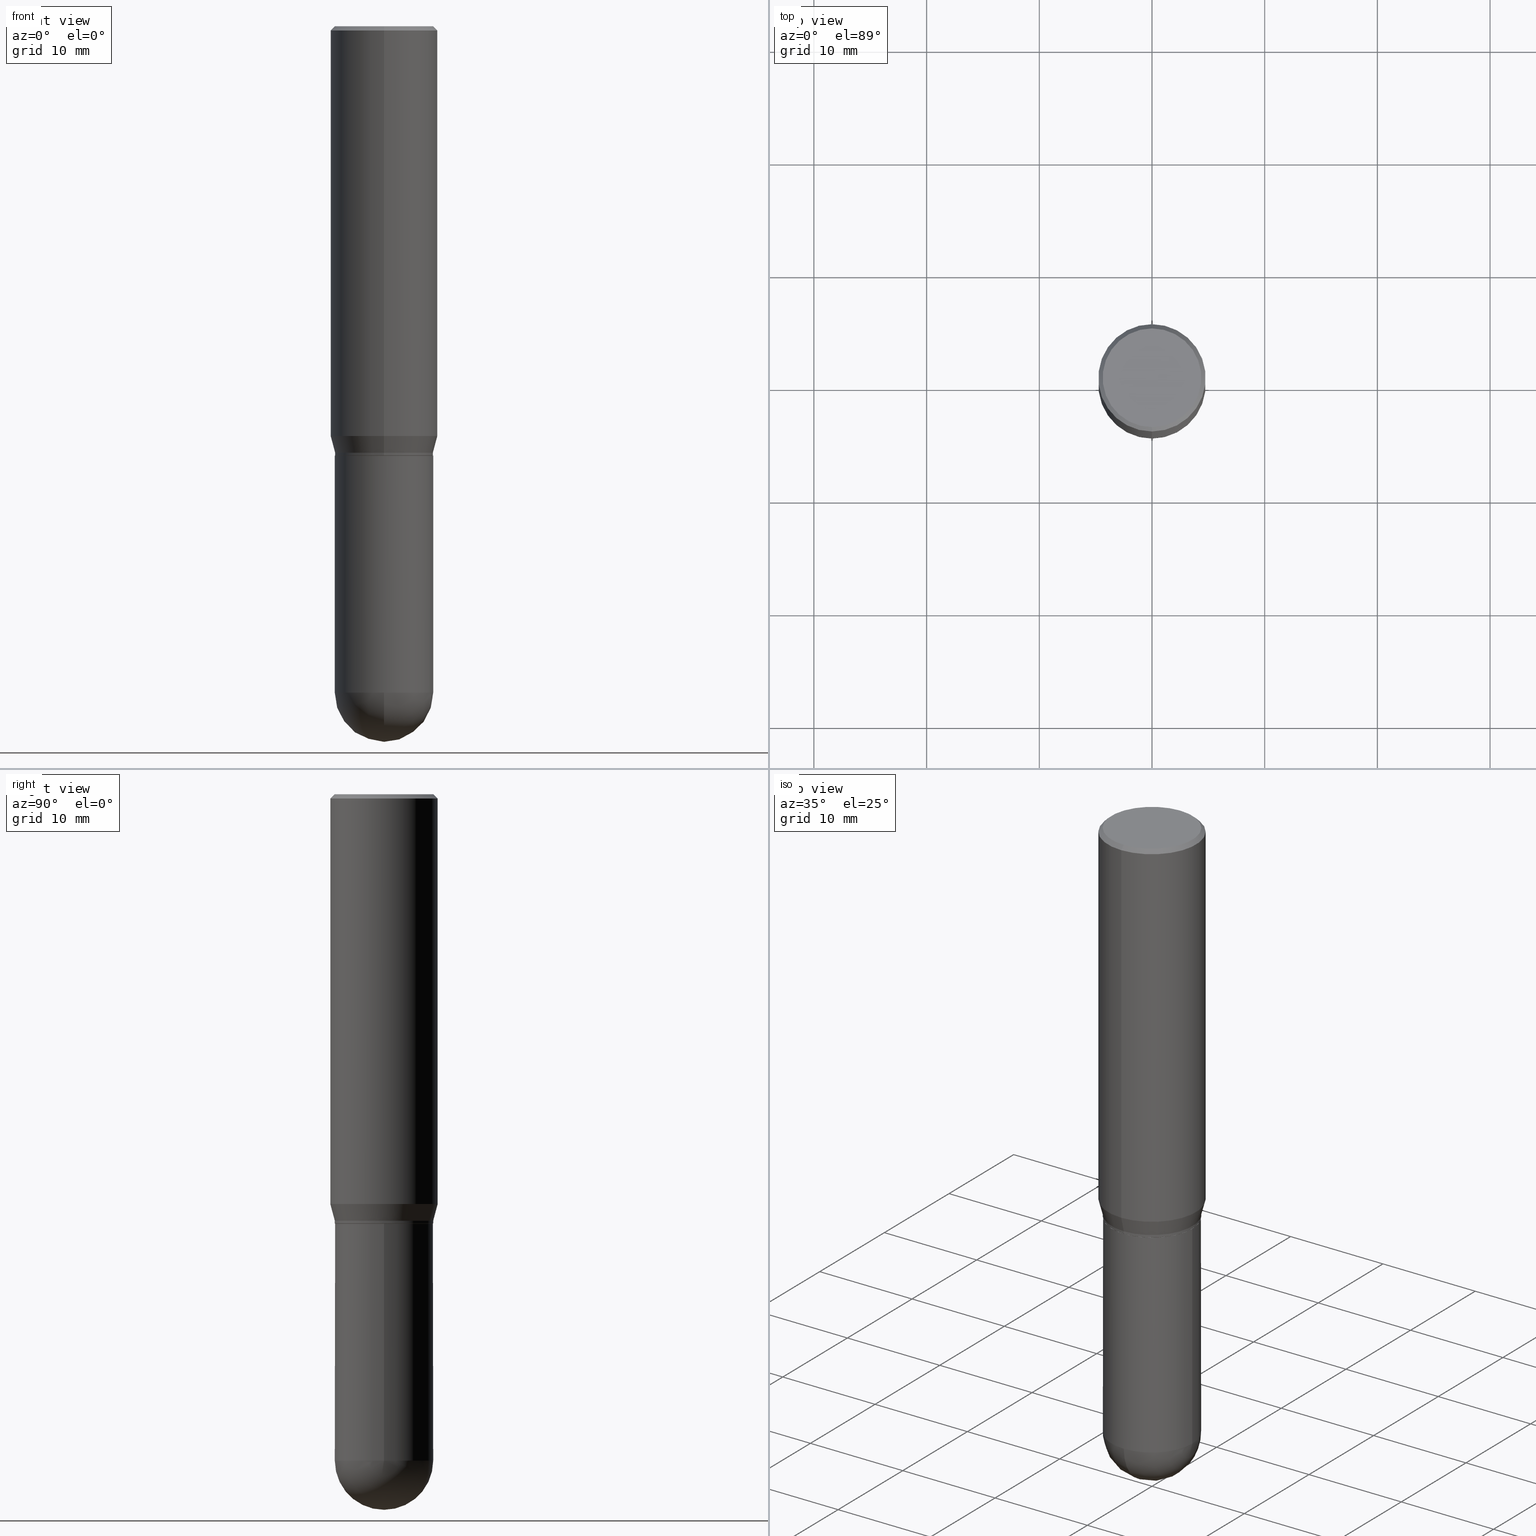
[diagram: canonical four-view strip — front | top / right | iso, engineering-drawing reading convention]
A machine part, canonical four-view strip (front | top / right | iso — engineering-drawing reading convention). The complete STEP part file that produces these views, byte-faithful:
ISO-10303-21;
HEADER;
FILE_DESCRIPTION (( 'STEP AP203' ),
    '1' );
FILE_NAME ('30544.STEP',
    '2024-03-08T15:32:07',
    ( '' ),
    ( '' ),
    'SwSTEP 2.0',
    'SolidWorks 2023',
    '' );
FILE_SCHEMA (( 'CONFIG_CONTROL_DESIGN' ));
ENDSEC;

DATA;
#1 = ORIENTED_EDGE ( 'NONE', *, *, #424, .F. ) ;
#2 = DIRECTION ( 'NONE',  ( -7.105427357601001070E-15, -1.000000000000000000, 0.000000000000000000 ) ) ;
#3 = EDGE_CURVE ( 'NONE', #134, #171, #494, .T. ) ;
#4 = ORIENTED_EDGE ( 'NONE', *, *, #305, .T. ) ;
#5 = DATE_TIME_ROLE ( 'classification_date' ) ;
#6 = ORIENTED_EDGE ( 'NONE', *, *, #28, .T. ) ;
#7 = AXIS2_PLACEMENT_3D ( 'NONE', #15, #25, #403 ) ;
#8 = EDGE_CURVE ( 'NONE', #251, #134, #235, .T. ) ;
#9 = ORIENTED_EDGE ( 'NONE', *, *, #28, .F. ) ;
#10 = CARTESIAN_POINT ( 'NONE',  ( 1.325500720156383299E-45, -1.892455723492389081E-31, -5.420220105122506872E-17 ) ) ;
#11 = VERTEX_POINT ( 'NONE', #105 ) ;
#12 = DIRECTION ( 'NONE',  ( -6.982962677686266711E-15, -1.000000000000000000, 3.187687273820611169E-15 ) ) ;
#13 = VERTEX_POINT ( 'NONE', #62 ) ;
#14 = CIRCLE ( 'NONE', #354, 0.1718999999999998862 ) ;
#15 = CARTESIAN_POINT ( 'NONE',  ( 3.668210961314156973E-29, -5.237210906907301972E-15, -1.500000000000000222 ) ) ;
#16 = CARTESIAN_POINT ( 'NONE',  ( 5.693295927679617284E-29, -8.128517704960729139E-15, -2.328100000000000058 ) ) ;
#17 = LINE ( 'NONE', #107, #503 ) ;
#18 = CARTESIAN_POINT ( 'NONE',  ( 3.668210961314156973E-29, -5.237210906907301972E-15, -1.500000000000000222 ) ) ;
#19 = EDGE_CURVE ( 'NONE', #229, #131, #429, .T. ) ;
#20 = DIRECTION ( 'NONE',  ( 2.445473974209437701E-29, -3.491473937938200789E-15, -1.000000000000000000 ) ) ;
#21 = ORIENTED_EDGE ( 'NONE', *, *, #8, .T. ) ;
#22 = FACE_OUTER_BOUND ( 'NONE', #120, .T. ) ;
#23 = DIRECTION ( 'NONE',  ( -2.445468806185136597E-29, 3.491481338843145583E-15, 1.000000000000000000 ) ) ;
#24 = EDGE_LOOP ( 'NONE', ( #56, #88, #46, #103 ) ) ;
#25 = DIRECTION ( 'NONE',  ( -2.445473974209437701E-29, 3.491473937938200789E-15, 1.000000000000000000 ) ) ;
#26 = AXIS2_PLACEMENT_3D ( 'NONE', #10, #374, #443 ) ;
#27 = ORIENTED_EDGE ( 'NONE', *, *, #428, .T. ) ;
#28 = EDGE_CURVE ( 'NONE', #188, #340, #122, .T. ) ;
#29 = FACE_OUTER_BOUND ( 'NONE', #358, .T. ) ;
#30 = PRODUCT_DEFINITION_SHAPE ( 'NONE', 'NONE',  #489 ) ;
#31 = COORDINATED_UNIVERSAL_TIME_OFFSET ( 5, 0, .BEHIND. ) ;
#32 = APPROVAL_DATE_TIME ( #194, #33 ) ;
#33 = APPROVAL ( #237, 'UNSPECIFIED' ) ;
#34 = EDGE_CURVE ( 'NONE', #131, #251, #143, .T. ) ;
#35 = AXIS2_PLACEMENT_3D ( 'NONE', #350, #423, #242 ) ;
#36 = AXIS2_PLACEMENT_3D ( 'NONE', #39, #200, #352 ) ;
#37 = PERSON_AND_ORGANIZATION ( #49, #225 ) ;
#38 = FACE_OUTER_BOUND ( 'NONE', #265, .T. ) ;
#39 = CARTESIAN_POINT ( 'NONE',  ( 3.501380744894803912E-29, -4.999022580704787319E-15, -1.431780007401925348 ) ) ;
#40 = CARTESIAN_POINT ( 'NONE',  ( 0.000000000000000000, 0.000000000000000000, 0.000000000000000000 ) ) ;
#41 = AXIS2_PLACEMENT_3D ( 'NONE', #329, #20, #216 ) ;
#42 = CC_DESIGN_APPROVAL ( #212, ( #316 ) ) ;
#43 = COORDINATED_UNIVERSAL_TIME_OFFSET ( 5, 0, .BEHIND. ) ;
#44 = ORIENTED_EDGE ( 'NONE', *, *, #305, .F. ) ;
#45 = FACE_OUTER_BOUND ( 'NONE', #217, .T. ) ;
#46 = ORIENTED_EDGE ( 'NONE', *, *, #506, .F. ) ;
#47 = CARTESIAN_POINT ( 'NONE',  ( 5.678595619168622984E-29, -8.149569383438070914E-15, -2.328100000000000058 ) ) ;
#48 = ORIENTED_EDGE ( 'NONE', *, *, #34, .F. ) ;
#49 = PERSON ( 'UNSPECIFIED', 'UNSPECIFIED', 'UNSPECIFIED', ('UNSPECIFIED'), ('UNSPECIFIED'), ('UNSPECIFIED') ) ;
#50 = CC_DESIGN_PERSON_AND_ORGANIZATION_ASSIGNMENT ( #37, #71, ( #489 ) ) ;
#51 = CIRCLE ( 'NONE', #115, 0.1718999999999999140 ) ;
#52 = ORIENTED_EDGE ( 'NONE', *, *, #155, .F. ) ;
#53 = DIRECTION ( 'NONE',  ( 1.000000000000000000, -6.982962677686268288E-15, 0.000000000000000000 ) ) ;
#54 = ORIENTED_EDGE ( 'NONE', *, *, #98, .F. ) ;
#55 = EDGE_CURVE ( 'NONE', #163, #171, #126, .T. ) ;
#56 = ORIENTED_EDGE ( 'NONE', *, *, #437, .T. ) ;
#57 = FACE_OUTER_BOUND ( 'NONE', #24, .T. ) ;
#58 = CYLINDRICAL_SURFACE ( 'NONE', #123, 0.1719000000000000250 ) ;
#59 = DIRECTION ( 'NONE',  ( -2.445473974209437701E-29, 3.491473937938200789E-15, 1.000000000000000000 ) ) ;
#60 = FACE_OUTER_BOUND ( 'NONE', #86, .T. ) ;
#61 = DIRECTION ( 'NONE',  ( -2.445473974209437701E-29, 3.491473937938200789E-15, 1.000000000000000000 ) ) ;
#62 = CARTESIAN_POINT ( 'NONE',  ( 1.200371284294326039E-15, 0.1718999999999918094, -2.328100000000000946 ) ) ;
#63 = DIRECTION ( 'NONE',  ( -4.851104656540965064E-15, -0.7071067811865501263, -0.7071067811865449082 ) ) ;
#64 = DIRECTION ( 'NONE',  ( -4.937700262164715281E-15, -0.7071067811865691111, 0.7071067811865257013 ) ) ;
#65 = DIRECTION ( 'NONE',  ( 1.839019923739597949E-15, 0.2588190451025246253, 0.9659258262890670910 ) ) ;
#66 = CARTESIAN_POINT ( 'NONE',  ( 0.000000000000000000, 0.000000000000000000, 0.000000000000000000 ) ) ;
#67 = CARTESIAN_POINT ( 'NONE',  ( 1.221422962771647501E-15, 0.1718999999999946959, -1.490000000000000879 ) ) ;
#68 = AXIS2_PLACEMENT_3D ( 'NONE', #490, #178, #332 ) ;
#69 = CALENDAR_DATE ( 2024, 8, 3 ) ;
#70 = EDGE_CURVE ( 'NONE', #171, #188, #451, .T. ) ;
#71 = PERSON_AND_ORGANIZATION_ROLE ( 'creator' ) ;
#72 =( NAMED_UNIT ( * ) SI_UNIT ( $, .STERADIAN. ) SOLID_ANGLE_UNIT ( ) );
#73 = ADVANCED_FACE ( 'NONE', ( #411 ), #150, .T. ) ;
#74 = CIRCLE ( 'NONE', #203, 0.1719000000000000250 ) ;
#75 = CIRCLE ( 'NONE', #36, 0.1875000000000000278 ) ;
#76 = PLANE ( 'NONE',  #504 ) ;
#77 = DATE_AND_TIME ( #415, #147 ) ;
#78 = CARTESIAN_POINT ( 'NONE',  ( 5.678595619168622984E-29, -8.149569383438070914E-15, -2.328100000000000058 ) ) ;
#79 = VECTOR ( 'NONE', #441, 39.37007874015748143 ) ;
#80 = EDGE_CURVE ( 'NONE', #11, #320, #17, .T. ) ;
#81 = VERTEX_POINT ( 'NONE', #491 ) ;
#82 = LINE ( 'NONE', #473, #179 ) ;
#83 = ADVANCED_FACE ( 'NONE', ( #414 ), #145, .T. ) ;
#84 = ORIENTED_EDGE ( 'NONE', *, *, #348, .T. ) ;
#85 = APPROVAL_STATUS ( 'not_yet_approved' ) ;
#86 = EDGE_LOOP ( 'NONE', ( #219, #359 ) ) ;
#87 = AXIS2_PLACEMENT_3D ( 'NONE', #119, #254, #508 ) ;
#88 = ORIENTED_EDGE ( 'NONE', *, *, #367, .T. ) ;
#89 = CARTESIAN_POINT ( 'NONE',  ( 0.000000000000000000, 0.000000000000000000, 0.000000000000000000 ) ) ;
#90 = ORIENTED_EDGE ( 'NONE', *, *, #70, .T. ) ;
#91 = CYLINDRICAL_SURFACE ( 'NONE', #87, 0.1719000000000000250 ) ;
#92 = DIRECTION ( 'NONE',  ( 1.000000000000000000, -6.982962677686271444E-15, 0.000000000000000000 ) ) ;
#93 = CARTESIAN_POINT ( 'NONE',  ( -1.200371284294268255E-15, -0.1718999999999998862, 6.001843699315763985E-16 ) ) ;
#94 = DIRECTION ( 'NONE',  ( 2.445473974209437701E-29, -3.491473937938200789E-15, -1.000000000000000000 ) ) ;
#95 = CARTESIAN_POINT ( 'NONE',  ( -1.309305502066140101E-15, -0.1875000000000049960, -1.431780007401924903 ) ) ;
#96 = AXIS2_PLACEMENT_3D ( 'NONE', #66, #59, #306 ) ;
#97 = CARTESIAN_POINT ( 'NONE',  ( -1.200371284294231968E-15, -0.1719000000000050765, -1.489999999999999769 ) ) ;
#98 = EDGE_CURVE ( 'NONE', #320, #210, #369, .T. ) ;
#99 = AXIS2_PLACEMENT_3D ( 'NONE', #140, #230, #462 ) ;
#100 = DIRECTION ( 'NONE',  ( 1.000000000000000000, -6.982962677686268288E-15, 0.000000000000000000 ) ) ;
#101 = LOCAL_TIME ( 10, 32, 7.000000000000000000, #510 ) ;
#102 = CARTESIAN_POINT ( 'NONE',  ( -0.1718999999999999695, -5.461446893841111458E-15, -1.500000000000000222 ) ) ;
#103 = ORIENTED_EDGE ( 'NONE', *, *, #3, .F. ) ;
#104 = DIRECTION ( 'NONE',  ( -6.982962677686265922E-15, -1.000000000000000000, 3.178415350394723646E-15 ) ) ;
#105 = CARTESIAN_POINT ( 'NONE',  ( 0.1719000000000000250, -7.883241140906993293E-15, -2.328100000000000058 ) ) ;
#106 = CARTESIAN_POINT ( 'NONE',  ( 3.666988224327052427E-29, -5.235465169938333100E-15, -1.499500000000000277 ) ) ;
#107 = CARTESIAN_POINT ( 'NONE',  ( 0.1719000000000000250, -1.200371284294269241E-15, 8.382147877593214480E-30 ) ) ;
#108 = CARTESIAN_POINT ( 'NONE',  ( 3.643756221572062694E-29, -5.202296167527919806E-15, -1.490000000000000213 ) ) ;
#109 = CIRCLE ( 'NONE', #360, 0.1713999999999999690 ) ;
#110 = APPROVAL_PERSON_ORGANIZATION ( #170, #212, #130 ) ;
#111 = EDGE_CURVE ( 'NONE', #81, #176, #281, .T. ) ;
#112 = CALENDAR_DATE ( 2024, 8, 3 ) ;
#113 = SECURITY_CLASSIFICATION_LEVEL ( 'unclassified' ) ;
#114 = CC_DESIGN_DATE_AND_TIME_ASSIGNMENT ( #507, #5, ( #316 ) ) ;
#115 = AXIS2_PLACEMENT_3D ( 'NONE', #106, #302, #366 ) ;
#116 = AXIS2_PLACEMENT_3D ( 'NONE', #108, #233, #457 ) ;
#117 = APPLICATION_PROTOCOL_DEFINITION ( 'international standard', 'config_control_design', 1994, #438 ) ;
#118 = EDGE_CURVE ( 'NONE', #131, #229, #109, .T. ) ;
#119 = CARTESIAN_POINT ( 'NONE',  ( 0.000000000000000000, 0.000000000000000000, 0.000000000000000000 ) ) ;
#120 = EDGE_LOOP ( 'NONE', ( #356, #409 ) ) ;
#121 = CARTESIAN_POINT ( 'NONE',  ( 0.1718999999999999695, -6.437593292558987418E-15, -1.500000000000000222 ) ) ;
#122 = CIRCLE ( 'NONE', #505, 0.1875000000000000278 ) ;
#123 = AXIS2_PLACEMENT_3D ( 'NONE', #89, #252, #398 ) ;
#124 = APPROVAL ( #276, 'UNSPECIFIED' ) ;
#125 = AXIS2_PLACEMENT_3D ( 'NONE', #304, #268, #104 ) ;
#126 = CIRCLE ( 'NONE', #478, 0.1875000000000000278 ) ;
#127 = ORIENTED_EDGE ( 'NONE', *, *, #326, .F. ) ;
#128 = EDGE_LOOP ( 'NONE', ( #44, #248, #90, #458 ) ) ;
#129 = SPHERICAL_SURFACE ( 'NONE', #154, 0.1718999999999999417 ) ;
#130 = APPROVAL_ROLE ( '' ) ;
#131 = VERTEX_POINT ( 'NONE', #480 ) ;
#132 = DIRECTION ( 'NONE',  ( -2.445473974209437701E-29, 3.491473937938200789E-15, 1.000000000000000000 ) ) ;
#133 = AXIS2_PLACEMENT_3D ( 'NONE', #47, #201, #389 ) ;
#134 = VERTEX_POINT ( 'NONE', #250 ) ;
#135 = DIRECTION ( 'NONE',  ( -2.445473974209437701E-29, 3.491473937938200789E-15, 1.000000000000000000 ) ) ;
#136 = EDGE_LOOP ( 'NONE', ( #319, #442, #499, #472 ) ) ;
#137 = DIRECTION ( 'NONE',  ( -2.445473974209437701E-29, 3.491473937938200789E-15, 1.000000000000000000 ) ) ;
#138 = LINE ( 'NONE', #335, #79 ) ;
#139 = DIRECTION ( 'NONE',  ( -2.445473974209437982E-29, 3.491473937938200394E-15, 1.000000000000000000 ) ) ;
#140 = CARTESIAN_POINT ( 'NONE',  ( 5.678595619168622984E-29, -8.149569383438070914E-15, -2.328100000000000058 ) ) ;
#141 = EDGE_CURVE ( 'NONE', #81, #340, #138, .T. ) ;
#142 = VECTOR ( 'NONE', #380, 39.37007874015748143 ) ;
#143 = LINE ( 'NONE', #257, #347 ) ;
#144 = ADVANCED_BREP_SHAPE_REPRESENTATION ( '30544', ( #197, #368, #204 ), #361 ) ;
#145 = CONICAL_SURFACE ( 'NONE', #308, 0.1713999999999999690, 0.7853981633974824739 ) ;
#146 = SPHERICAL_SURFACE ( 'NONE', #99, 0.1718999999999999417 ) ;
#147 = LOCAL_TIME ( 10, 32, 7.000000000000000000, #465 ) ;
#148 = ORIENTED_EDGE ( 'NONE', *, *, #55, .F. ) ;
#149 = CARTESIAN_POINT ( 'NONE',  ( 3.643756221572062694E-29, -5.202296167527919806E-15, -1.490000000000000213 ) ) ;
#150 = CYLINDRICAL_SURFACE ( 'NONE', #96, 0.1718999999999998862 ) ;
#151 = DIRECTION ( 'NONE',  ( -6.982962677686265922E-15, -1.000000000000000000, 3.178415350394723252E-15 ) ) ;
#152 = DESIGN_CONTEXT ( 'detailed design', #438, 'design' ) ;
#153 = PERSON_AND_ORGANIZATION ( #49, #225 ) ;
#154 = AXIS2_PLACEMENT_3D ( 'NONE', #493, #371, #264 ) ;
#155 = EDGE_CURVE ( 'NONE', #176, #81, #224, .T. ) ;
#156 = PERSON_AND_ORGANIZATION_ROLE ( 'design_owner' ) ;
#157 = APPROVAL_ROLE ( '' ) ;
#158 = DIRECTION ( 'NONE',  ( -6.982962677686265922E-15, -1.000000000000000000, 3.491473937938200789E-15 ) ) ;
#159 = FACE_OUTER_BOUND ( 'NONE', #444, .T. ) ;
#160 = APPROVAL_PERSON_ORGANIZATION ( #353, #124, #425 ) ;
#161 = ADVANCED_FACE ( 'NONE', ( #445 ), #327, .T. ) ;
#162 = CYLINDRICAL_SURFACE ( 'NONE', #396, 0.1875000000000000278 ) ;
#163 = VERTEX_POINT ( 'NONE', #363 ) ;
#164 = CC_DESIGN_PERSON_AND_ORGANIZATION_ASSIGNMENT ( #153, #195, ( #316 ) ) ;
#165 = FACE_OUTER_BOUND ( 'NONE', #128, .T. ) ;
#166 = EDGE_CURVE ( 'NONE', #336, #11, #234, .T. ) ;
#167 = ORIENTED_EDGE ( 'NONE', *, *, #437, .F. ) ;
#168 = CIRCLE ( 'NONE', #133, 0.1718999999999999417 ) ;
#169 = LOCAL_TIME ( 10, 32, 7.000000000000000000, #43 ) ;
#170 = PERSON_AND_ORGANIZATION ( #49, #225 ) ;
#171 = VERTEX_POINT ( 'NONE', #95 ) ;
#172 = ADVANCED_FACE ( 'NONE', ( #378 ), #129, .T. ) ;
#173 = APPROVAL_DATE_TIME ( #279, #212 ) ;
#174 = ORIENTED_EDGE ( 'NONE', *, *, #141, .T. ) ;
#175 = SHAPE_DEFINITION_REPRESENTATION ( #30, #144 ) ;
#176 = VERTEX_POINT ( 'NONE', #231 ) ;
#177 = EDGE_CURVE ( 'NONE', #11, #13, #430, .T. ) ;
#178 = DIRECTION ( 'NONE',  ( -2.445473974209437701E-29, 3.491473937938200789E-15, 1.000000000000000000 ) ) ;
#179 = VECTOR ( 'NONE', #246, 39.37007874015748143 ) ;
#180 = DIRECTION ( 'NONE',  ( -6.982962677686265922E-15, -1.000000000000000000, 2.913971193241880372E-15 ) ) ;
#181 = DIRECTION ( 'NONE',  ( -2.445473974209437701E-29, 3.491473937938200789E-15, 1.000000000000000000 ) ) ;
#182 = CARTESIAN_POINT ( 'NONE',  ( 3.668210961314169865E-31, -5.237210906907319302E-17, -0.01500000000000005322 ) ) ;
#183 = DIRECTION ( 'NONE',  ( -2.445468806185136877E-29, 3.491481338843145188E-15, 1.000000000000000000 ) ) ;
#184 = DIRECTION ( 'NONE',  ( -6.982962677686265922E-15, -1.000000000000000000, 3.491473937938200394E-15 ) ) ;
#185 = CARTESIAN_POINT ( 'NONE',  ( 5.693295927679617284E-29, -8.128517704960729139E-15, -2.328100000000000058 ) ) ;
#186 = EDGE_LOOP ( 'NONE', ( #470, #402, #54, #286, #379 ) ) ;
#187 = PLANE ( 'NONE',  #274 ) ;
#188 = VERTEX_POINT ( 'NONE', #298 ) ;
#189 = CC_DESIGN_APPROVAL ( #33, ( #214 ) ) ;
#190 = DIRECTION ( 'NONE',  ( 5.024295867788231995E-15, 0.7071067811865739960, 0.7071067811865208164 ) ) ;
#191 = DIMENSIONAL_EXPONENTS ( 1.000000000000000000, 0.000000000000000000, 0.000000000000000000, 0.000000000000000000, 0.000000000000000000, 0.000000000000000000, 0.000000000000000000 ) ;
#192 = CARTESIAN_POINT ( 'NONE',  ( 3.668210961314156973E-29, -5.237210906907301972E-15, -1.500000000000000222 ) ) ;
#193 = DIRECTION ( 'NONE',  ( -2.445468806185136597E-29, 3.491481338843145583E-15, 1.000000000000000000 ) ) ;
#194 = DATE_AND_TIME ( #112, #496 ) ;
#195 = PERSON_AND_ORGANIZATION_ROLE ( 'classification_officer' ) ;
#196 = VECTOR ( 'NONE', #456, 39.37007874015748143 ) ;
#197 = MANIFOLD_SOLID_BREP ( 'Body-Move/Copy2[1]', #448 ) ;
#198 = DATE_AND_TIME ( #69, #101 ) ;
#199 = CYLINDRICAL_SURFACE ( 'NONE', #35, 0.1718999999999998862 ) ;
#200 = DIRECTION ( 'NONE',  ( -2.445473974209437701E-29, 3.491473937938200789E-15, 1.000000000000000000 ) ) ;
#201 = DIRECTION ( 'NONE',  ( 1.000000000000000000, -6.982962677686265922E-15, 4.883557194083112340E-29 ) ) ;
#202 = MECHANICAL_CONTEXT ( 'NONE', #418, 'mechanical' ) ;
#203 = AXIS2_PLACEMENT_3D ( 'NONE', #307, #447, #376 ) ;
#204 = AXIS2_PLACEMENT_3D ( 'NONE', #40, #509, #387 ) ;
#205 = EDGE_CURVE ( 'NONE', #483, #210, #486, .T. ) ;
#206 = ORIENTED_EDGE ( 'NONE', *, *, #367, .F. ) ;
#207 = CARTESIAN_POINT ( 'NONE',  ( 0.000000000000000000, 0.000000000000000000, 0.000000000000000000 ) ) ;
#208 = ORIENTED_EDGE ( 'NONE', *, *, #506, .T. ) ;
#209 = CARTESIAN_POINT ( 'NONE',  ( 1.332267629550222953E-15, 0.1874999999999999445, -0.01500000000000070895 ) ) ;
#210 = VERTEX_POINT ( 'NONE', #102 ) ;
#211 = AXIS2_PLACEMENT_3D ( 'NONE', #207, #512, #158 ) ;
#212 = APPROVAL ( #85, 'UNSPECIFIED' ) ;
#213 = CONICAL_SURFACE ( 'NONE', #7, 0.1713999999999999690, 0.7853981633974824739 ) ;
#214 = PRODUCT_DEFINITION_FORMATION_WITH_SPECIFIED_SOURCE ( 'ANY', '', #463, .NOT_KNOWN. ) ;
#215 = ORIENTED_EDGE ( 'NONE', *, *, #80, .T. ) ;
#216 = DIRECTION ( 'NONE',  ( 6.982962677686265922E-15, 1.000000000000000000, -3.494488891895536035E-15 ) ) ;
#217 = EDGE_LOOP ( 'NONE', ( #208, #4, #9, #293 ) ) ;
#218 = DIRECTION ( 'NONE',  ( -6.982962677686266711E-15, -1.000000000000000000, 3.187687273820611169E-15 ) ) ;
#219 = ORIENTED_EDGE ( 'NONE', *, *, #118, .F. ) ;
#220 = EDGE_CURVE ( 'NONE', #13, #483, #314, .T. ) ;
#221 = DIRECTION ( 'NONE',  ( 6.982962677686265922E-15, 1.000000000000000000, -3.494488891895536035E-15 ) ) ;
#222 = CARTESIAN_POINT ( 'NONE',  ( 1.219646605932247841E-15, 0.1713999999999947510, -1.500000000000000666 ) ) ;
#223 = VECTOR ( 'NONE', #139, 39.37007874015748143 ) ;
#224 = CIRCLE ( 'NONE', #26, 0.1725000000000000144 ) ;
#225 = ORGANIZATION ( 'UNSPECIFIED', 'UNSPECIFIED', '' ) ;
#226 = EDGE_LOOP ( 'NONE', ( #439, #383, #247, #48 ) ) ;
#227 = DIRECTION ( 'NONE',  ( 2.445473974209437701E-29, -3.491473937938200394E-15, -1.000000000000000000 ) ) ;
#228 = ADVANCED_FACE ( 'NONE', ( #401 ), #58, .T. ) ;
#229 = VERTEX_POINT ( 'NONE', #222 ) ;
#230 = DIRECTION ( 'NONE',  ( -1.000000000000000000, 6.982962677686265922E-15, -4.883557194083112340E-29 ) ) ;
#231 = CARTESIAN_POINT ( 'NONE',  ( -1.234889639598875176E-15, -0.1725000000000000144, 5.480770532431145279E-16 ) ) ;
#232 = CARTESIAN_POINT ( 'NONE',  ( 3.501380744894803912E-29, -4.999022580704787319E-15, -1.431780007401925348 ) ) ;
#233 = DIRECTION ( 'NONE',  ( -2.445473974209437701E-29, 3.491473937938200789E-15, 1.000000000000000000 ) ) ;
#234 = CIRCLE ( 'NONE', #299, 0.1719000000000000250 ) ;
#235 = LINE ( 'NONE', #93, #223 ) ;
#236 = DIRECTION ( 'NONE',  ( -6.982962677686265922E-15, -1.000000000000000000, 3.178415350394723646E-15 ) ) ;
#237 = APPROVAL_STATUS ( 'not_yet_approved' ) ;
#238 = PERSON_AND_ORGANIZATION ( #49, #225 ) ;
#239 = EDGE_LOOP ( 'NONE', ( #280, #436, #167, #289 ) ) ;
#240 = CIRCLE ( 'NONE', #413, 0.1718999999999999140 ) ;
#241 = EDGE_CURVE ( 'NONE', #340, #188, #404, .T. ) ;
#242 = DIRECTION ( 'NONE',  ( -6.982962677686265922E-15, -1.000000000000000000, 3.491473937938201183E-15 ) ) ;
#243 = CIRCLE ( 'NONE', #381, 0.1718999999999999417 ) ;
#244 = DIRECTION ( 'NONE',  ( -1.000000000000000000, 6.982962677686265922E-15, -4.876176775795935793E-29 ) ) ;
#245 = ORIENTED_EDGE ( 'NONE', *, *, #326, .T. ) ;
#246 = DIRECTION ( 'NONE',  ( -2.445473974209437982E-29, 3.491473937938200394E-15, 1.000000000000000000 ) ) ;
#247 = ORIENTED_EDGE ( 'NONE', *, *, #416, .F. ) ;
#248 = ORIENTED_EDGE ( 'NONE', *, *, #55, .T. ) ;
#249 = CIRCLE ( 'NONE', #116, 0.1718999999999998862 ) ;
#250 = CARTESIAN_POINT ( 'NONE',  ( -1.200371284294231968E-15, -0.1719000000000050765, -1.489999999999999769 ) ) ;
#251 = VERTEX_POINT ( 'NONE', #427 ) ;
#252 = DIRECTION ( 'NONE',  ( -2.445468806185136597E-29, 3.491481338843145583E-15, 1.000000000000000000 ) ) ;
#253 = EDGE_LOOP ( 'NONE', ( #127, #323, #1, #405 ) ) ;
#254 = DIRECTION ( 'NONE',  ( -2.445468806185136597E-29, 3.491481338843145583E-15, 1.000000000000000000 ) ) ;
#255 = DIRECTION ( 'NONE',  ( -2.445468806185136877E-29, 3.491481338843145188E-15, 1.000000000000000000 ) ) ;
#256 = CC_DESIGN_DATE_AND_TIME_ASSIGNMENT ( #198, #422, ( #489 ) ) ;
#257 = CARTESIAN_POINT ( 'NONE',  ( -1.196879802955389158E-15, -0.1714000000000052149, -1.499999999999999556 ) ) ;
#258 = CARTESIAN_POINT ( 'NONE',  ( 3.668210961314169865E-31, -5.237210906907319302E-17, -0.01500000000000005322 ) ) ;
#259 = DIRECTION ( 'NONE',  ( -2.445468806185136597E-29, 3.491481338843145583E-15, 1.000000000000000000 ) ) ;
#260 = AXIS2_PLACEMENT_3D ( 'NONE', #258, #94, #221 ) ;
#261 = DIRECTION ( 'NONE',  ( -2.445473974209437982E-29, 3.491473937938200394E-15, 1.000000000000000000 ) ) ;
#262 = VECTOR ( 'NONE', #261, 39.37007874015748143 ) ;
#263 = CARTESIAN_POINT ( 'NONE',  ( -1.286343374582161576E-15, -0.1875000000000000833, -0.01499999999999939750 ) ) ;
#264 = DIRECTION ( 'NONE',  ( 6.982962677686265922E-15, 1.000000000000000000, -3.178415350394722463E-15 ) ) ;
#265 = EDGE_LOOP ( 'NONE', ( #479, #27, #21, #362 ) ) ;
#266 = DIRECTION ( 'NONE',  ( -2.445473974209437701E-29, 3.491473937938200394E-15, 1.000000000000000000 ) ) ;
#267 = CARTESIAN_POINT ( 'NONE',  ( 3.668210961314169865E-31, -5.237210906907319302E-17, -0.01500000000000005322 ) ) ;
#268 = DIRECTION ( 'NONE',  ( -2.445473974209437701E-29, 3.491473937938200789E-15, 1.000000000000000000 ) ) ;
#269 = LOCAL_TIME ( 10, 32, 7.000000000000000000, #349 ) ;
#270 = VERTEX_POINT ( 'NONE', #469 ) ;
#271 = CC_DESIGN_PERSON_AND_ORGANIZATION_ASSIGNMENT ( #468, #156, ( #463 ) ) ;
#272 = CALENDAR_DATE ( 2024, 8, 3 ) ;
#273 = PERSON_AND_ORGANIZATION ( #49, #225 ) ;
#274 = AXIS2_PLACEMENT_3D ( 'NONE', #337, #227, #294 ) ;
#275 = CARTESIAN_POINT ( 'NONE',  ( -1.221422962771555008E-15, -0.1719000000000081296, -2.328099999999999614 ) ) ;
#276 = APPROVAL_STATUS ( 'not_yet_approved' ) ;
#277 = ADVANCED_FACE ( 'NONE', ( #159 ), #76, .F. ) ;
#278 = DIRECTION ( 'NONE',  ( -1.000000000000000000, 7.105427357601001070E-15, -4.926315508542082329E-29 ) ) ;
#279 = DATE_AND_TIME ( #435, #169 ) ;
#280 = ORIENTED_EDGE ( 'NONE', *, *, #416, .T. ) ;
#281 = CIRCLE ( 'NONE', #68, 0.1725000000000000144 ) ;
#282 = DIRECTION ( 'NONE',  ( -6.982962677686265922E-15, -1.000000000000000000, 3.494488891895536035E-15 ) ) ;
#283 = EDGE_LOOP ( 'NONE', ( #206, #284, #375, #148 ) ) ;
#284 = ORIENTED_EDGE ( 'NONE', *, *, #377, .T. ) ;
#285 = DIRECTION ( 'NONE',  ( 1.000000000000000000, -6.982962677686271444E-15, 0.000000000000000000 ) ) ;
#286 = ORIENTED_EDGE ( 'NONE', *, *, #80, .F. ) ;
#287 = ADVANCED_FACE ( 'NONE', ( #45 ), #390, .T. ) ;
#288 = VECTOR ( 'NONE', #63, 39.37007874015748143 ) ;
#289 = ORIENTED_EDGE ( 'NONE', *, *, #8, .F. ) ;
#290 = DIRECTION ( 'NONE',  ( -6.982962677686265922E-15, -1.000000000000000000, 3.491473937938200789E-15 ) ) ;
#291 = DIRECTION ( 'NONE',  ( -2.445468806185136597E-29, 3.491481338843145583E-15, 1.000000000000000000 ) ) ;
#292 = ADVANCED_FACE ( 'NONE', ( #165 ), #162, .T. ) ;
#293 = ORIENTED_EDGE ( 'NONE', *, *, #70, .F. ) ;
#294 = DIRECTION ( 'NONE',  ( 6.982962677686265922E-15, 1.000000000000000000, -3.491473937938200394E-15 ) ) ;
#295 = CARTESIAN_POINT ( 'NONE',  ( 3.668210961314156973E-29, -5.237210906907301972E-15, -1.500000000000000222 ) ) ;
#296 = ORIENTED_EDGE ( 'NONE', *, *, #348, .F. ) ;
#297 = CARTESIAN_POINT ( 'NONE',  ( 6.106321861207344902E-29, -8.739229186346536619E-15, -2.500000000000000000 ) ) ;
#298 = CARTESIAN_POINT ( 'NONE',  ( -1.309305502066174614E-15, -0.1875000000000000833, -0.01499999999999939750 ) ) ;
#299 = AXIS2_PLACEMENT_3D ( 'NONE', #185, #449, #482 ) ;
#300 = AXIS2_PLACEMENT_3D ( 'NONE', #18, #266, #184 ) ;
#301 = ORIENTED_EDGE ( 'NONE', *, *, #177, .F. ) ;
#302 = DIRECTION ( 'NONE',  ( -2.445473974209437701E-29, 3.491473937938200789E-15, 1.000000000000000000 ) ) ;
#303 = CARTESIAN_POINT ( 'NONE',  ( -1.309305502066175008E-15, -0.1875000000000000278, 6.546513633634127465E-16 ) ) ;
#304 = CARTESIAN_POINT ( 'NONE',  ( 3.643756221572062694E-29, -5.202296167527919806E-15, -1.490000000000000213 ) ) ;
#305 = EDGE_CURVE ( 'NONE', #163, #340, #82, .T. ) ;
#306 = DIRECTION ( 'NONE',  ( -6.982962677686265922E-15, -1.000000000000000000, 3.491473937938201183E-15 ) ) ;
#307 = CARTESIAN_POINT ( 'NONE',  ( 5.693295927679617284E-29, -8.128517704960729139E-15, -2.328100000000000058 ) ) ;
#308 = AXIS2_PLACEMENT_3D ( 'NONE', #312, #132, #218 ) ;
#309 =( CONVERSION_BASED_UNIT ( 'INCH', #313 ) LENGTH_UNIT ( ) NAMED_UNIT ( #191 ) );
#310 = ADVANCED_FACE ( 'NONE', ( #393 ), #91, .T. ) ;
#311 = DIRECTION ( 'NONE',  ( -6.982962677686265922E-15, -1.000000000000000000, 3.178415350394723646E-15 ) ) ;
#312 = CARTESIAN_POINT ( 'NONE',  ( 3.668210961314156973E-29, -5.237210906907301972E-15, -1.500000000000000222 ) ) ;
#313 = LENGTH_MEASURE_WITH_UNIT ( LENGTH_MEASURE( 0.02539999999999999897 ), #317 );
#314 = CIRCLE ( 'NONE', #321, 0.1719000000000000250 ) ;
#315 = EDGE_CURVE ( 'NONE', #395, #336, #243, .T. ) ;
#316 = SECURITY_CLASSIFICATION ( '', '', #113 ) ;
#317 =( LENGTH_UNIT ( ) NAMED_UNIT ( * ) SI_UNIT ( $, .METRE. ) );
#318 = CARTESIAN_POINT ( 'NONE',  ( 0.000000000000000000, 0.000000000000000000, 0.000000000000000000 ) ) ;
#319 = ORIENTED_EDGE ( 'NONE', *, *, #391, .F. ) ;
#320 = VERTEX_POINT ( 'NONE', #121 ) ;
#321 = AXIS2_PLACEMENT_3D ( 'NONE', #408, #23, #285 ) ;
#322 = ORIENTED_EDGE ( 'NONE', *, *, #141, .F. ) ;
#323 = ORIENTED_EDGE ( 'NONE', *, *, #315, .T. ) ;
#324 = CARTESIAN_POINT ( 'NONE',  ( 3.668203209277704895E-29, -5.237222008264718177E-15, -1.500000000000000222 ) ) ;
#325 = ORIENTED_EDGE ( 'NONE', *, *, #166, .F. ) ;
#326 = EDGE_CURVE ( 'NONE', #395, #13, #168, .T. ) ;
#327 = CONICAL_SURFACE ( 'NONE', #41, 0.1875000000000000278, 0.7853981633974485010 ) ;
#328 = CC_DESIGN_APPROVAL ( #124, ( #489 ) ) ;
#329 = CARTESIAN_POINT ( 'NONE',  ( 3.668210961314169865E-31, -5.237210906907319302E-17, -0.01500000000000005322 ) ) ;
#330 = ORIENTED_EDGE ( 'NONE', *, *, #166, .T. ) ;
#331 = CARTESIAN_POINT ( 'NONE',  ( 3.666988224327052427E-29, -5.235465169938333100E-15, -1.499500000000000277 ) ) ;
#332 = DIRECTION ( 'NONE',  ( -6.982962677686266711E-15, -1.000000000000000000, 3.491473937938200394E-15 ) ) ;
#333 = DIRECTION ( 'NONE',  ( -2.445473974209437701E-29, 3.491473937938200789E-15, 1.000000000000000000 ) ) ;
#334 = CARTESIAN_POINT ( 'NONE',  ( -0.1719000000000000250, -5.461446893841112247E-15, -2.328100000000000058 ) ) ;
#335 = CARTESIAN_POINT ( 'NONE',  ( 1.309305502066175600E-15, 0.1874999999999999445, -0.01500000000000070895 ) ) ;
#336 = VERTEX_POINT ( 'NONE', #275 ) ;
#337 = CARTESIAN_POINT ( 'NONE',  ( 1.204561061900881047E-15, 0.1725000000000000144, -6.293803548199521803E-16 ) ) ;
#338 = AXIS2_PLACEMENT_3D ( 'NONE', #324, #291, #53 ) ;
#339 = AXIS2_PLACEMENT_3D ( 'NONE', #149, #412, #311 ) ;
#340 = VERTEX_POINT ( 'NONE', #209 ) ;
#341 = ADVANCED_FACE ( 'NONE', ( #38 ), #199, .T. ) ;
#342 = FACE_OUTER_BOUND ( 'NONE', #283, .T. ) ;
#343 = DIRECTION ( 'NONE',  ( -6.982962677686266711E-15, -1.000000000000000000, 3.187687273820611169E-15 ) ) ;
#344 = CARTESIAN_POINT ( 'NONE',  ( 3.643756221572062694E-29, -5.202296167527919806E-15, -1.490000000000000213 ) ) ;
#345 = EDGE_CURVE ( 'NONE', #210, #320, #420, .T. ) ;
#346 = PERSON_AND_ORGANIZATION_ROLE ( 'creator' ) ;
#347 = VECTOR ( 'NONE', #64, 39.37007874015748854 ) ;
#348 = EDGE_CURVE ( 'NONE', #176, #188, #406, .T. ) ;
#349 = COORDINATED_UNIVERSAL_TIME_OFFSET ( 5, 0, .BEHIND. ) ;
#350 = CARTESIAN_POINT ( 'NONE',  ( 0.000000000000000000, 0.000000000000000000, 0.000000000000000000 ) ) ;
#351 = PRODUCT_RELATED_PRODUCT_CATEGORY ( 'detail', '', ( #463 ) ) ;
#352 = DIRECTION ( 'NONE',  ( -6.982962677686265922E-15, -1.000000000000000000, 2.913971193241880372E-15 ) ) ;
#353 = PERSON_AND_ORGANIZATION ( #49, #225 ) ;
#354 = AXIS2_PLACEMENT_3D ( 'NONE', #344, #137, #236 ) ;
#355 = CARTESIAN_POINT ( 'NONE',  ( 1.200371284294305726E-15, 0.1718999999999947514, -1.500000000000000666 ) ) ;
#356 = ORIENTED_EDGE ( 'NONE', *, *, #111, .T. ) ;
#357 = EDGE_CURVE ( 'NONE', #270, #446, #410, .T. ) ;
#358 = EDGE_LOOP ( 'NONE', ( #394, #245, #301, #325 ) ) ;
#359 = ORIENTED_EDGE ( 'NONE', *, *, #19, .F. ) ;
#360 = AXIS2_PLACEMENT_3D ( 'NONE', #295, #61, #12 ) ;
#361 =( GEOMETRIC_REPRESENTATION_CONTEXT ( 3 ) GLOBAL_UNCERTAINTY_ASSIGNED_CONTEXT ( ( #466 ) ) GLOBAL_UNIT_ASSIGNED_CONTEXT ( ( #309, #464, #72 ) ) REPRESENTATION_CONTEXT ( 'NONE', 'WORKASPACE' ) );
#362 = ORIENTED_EDGE ( 'NONE', *, *, #377, .F. ) ;
#363 = CARTESIAN_POINT ( 'NONE',  ( 1.332267629550222558E-15, 0.1874999999999950318, -1.431780007401926014 ) ) ;
#364 = EDGE_LOOP ( 'NONE', ( #52, #84, #6, #322 ) ) ;
#365 = ORIENTED_EDGE ( 'NONE', *, *, #205, .F. ) ;
#366 = DIRECTION ( 'NONE',  ( -6.982962677686265922E-15, -1.000000000000000000, 3.178415350394723252E-15 ) ) ;
#367 = EDGE_CURVE ( 'NONE', #446, #163, #488, .T. ) ;
#368 = MANIFOLD_SOLID_BREP ( 'Body-Move/Copy2[2]', #382 ) ;
#369 = CIRCLE ( 'NONE', #338, 0.1718999999999999695 ) ;
#370 = CONICAL_SURFACE ( 'NONE', #339, 0.1718999999999998862, 0.2617993877991499629 ) ;
#371 = DIRECTION ( 'NONE',  ( -1.000000000000000000, 6.982962677686265922E-15, -4.883557194083112340E-29 ) ) ;
#372 = DIRECTION ( 'NONE',  ( -6.982962677686265922E-15, -1.000000000000000000, 3.494488891895536035E-15 ) ) ;
#373 = PLANE ( 'NONE',  #300 ) ;
#374 = DIRECTION ( 'NONE',  ( -2.445473974209437701E-29, 3.491473937938200789E-15, 1.000000000000000000 ) ) ;
#375 = ORIENTED_EDGE ( 'NONE', *, *, #3, .T. ) ;
#376 = DIRECTION ( 'NONE',  ( 1.000000000000000000, -6.982962677686271444E-15, 0.000000000000000000 ) ) ;
#377 = EDGE_CURVE ( 'NONE', #446, #134, #14, .T. ) ;
#378 = FACE_OUTER_BOUND ( 'NONE', #253, .T. ) ;
#379 = ORIENTED_EDGE ( 'NONE', *, *, #177, .T. ) ;
#380 = DIRECTION ( 'NONE',  ( -2.445473974209437982E-29, 3.491473937938200394E-15, 1.000000000000000000 ) ) ;
#381 = AXIS2_PLACEMENT_3D ( 'NONE', #78, #278, #2 ) ;
#382 = CLOSED_SHELL ( 'NONE', ( #73, #83, #161, #287, #440, #501, #292, #452, #426, #474, #460, #341 ) ) ;
#383 = ORIENTED_EDGE ( 'NONE', *, *, #391, .T. ) ;
#384 = FACE_OUTER_BOUND ( 'NONE', #481, .T. ) ;
#385 = APPLICATION_PROTOCOL_DEFINITION ( 'international standard', 'config_control_design', 1994, #418 ) ;
#386 = EDGE_LOOP ( 'NONE', ( #365, #476, #330, #215, #397 ) ) ;
#387 = DIRECTION ( 'NONE',  ( 1.000000000000000000, 0.000000000000000000, 0.000000000000000000 ) ) ;
#388 = PERSON_AND_ORGANIZATION ( #49, #225 ) ;
#389 = DIRECTION ( 'NONE',  ( 6.982962677686266711E-15, 1.000000000000000000, 0.000000000000000000 ) ) ;
#390 = CYLINDRICAL_SURFACE ( 'NONE', #211, 0.1875000000000000278 ) ;
#391 = EDGE_CURVE ( 'NONE', #229, #270, #500, .T. ) ;
#392 = ORIENTED_EDGE ( 'NONE', *, *, #345, .T. ) ;
#393 = FACE_OUTER_BOUND ( 'NONE', #386, .T. ) ;
#394 = ORIENTED_EDGE ( 'NONE', *, *, #315, .F. ) ;
#395 = VERTEX_POINT ( 'NONE', #297 ) ;
#396 = AXIS2_PLACEMENT_3D ( 'NONE', #318, #471, #290 ) ;
#397 = ORIENTED_EDGE ( 'NONE', *, *, #345, .F. ) ;
#398 = DIRECTION ( 'NONE',  ( 1.000000000000000000, -6.982962677686265922E-15, 4.876176775795935793E-29 ) ) ;
#399 = ORIENTED_EDGE ( 'NONE', *, *, #241, .T. ) ;
#400 = CARTESIAN_POINT ( 'NONE',  ( 1.221422962771611214E-15, 0.1718999999999998862, -6.001843699315763985E-16 ) ) ;
#401 = FACE_OUTER_BOUND ( 'NONE', #186, .T. ) ;
#402 = ORIENTED_EDGE ( 'NONE', *, *, #205, .T. ) ;
#403 = DIRECTION ( 'NONE',  ( -6.982962677686266711E-15, -1.000000000000000000, 3.187687273820611169E-15 ) ) ;
#404 = CIRCLE ( 'NONE', #475, 0.1875000000000000278 ) ;
#405 = ORIENTED_EDGE ( 'NONE', *, *, #220, .F. ) ;
#406 = LINE ( 'NONE', #263, #288 ) ;
#407 = ADVANCED_FACE ( 'NONE', ( #29 ), #146, .T. ) ;
#408 = CARTESIAN_POINT ( 'NONE',  ( 5.693295927679617284E-29, -8.128517704960729139E-15, -2.328100000000000058 ) ) ;
#409 = ORIENTED_EDGE ( 'NONE', *, *, #155, .T. ) ;
#410 = LINE ( 'NONE', #400, #142 ) ;
#411 = FACE_OUTER_BOUND ( 'NONE', #239, .T. ) ;
#412 = DIRECTION ( 'NONE',  ( -2.445473974209437701E-29, 3.491473937938200789E-15, 1.000000000000000000 ) ) ;
#413 = AXIS2_PLACEMENT_3D ( 'NONE', #331, #181, #151 ) ;
#414 = FACE_OUTER_BOUND ( 'NONE', #226, .T. ) ;
#415 = CALENDAR_DATE ( 2024, 8, 3 ) ;
#416 = EDGE_CURVE ( 'NONE', #251, #270, #240, .T. ) ;
#417 = APPROVAL_DATE_TIME ( #77, #124 ) ;
#418 = APPLICATION_CONTEXT ( 'configuration controlled 3d designs of mechanical parts and assemblies' ) ;
#419 = VECTOR ( 'NONE', #255, 39.37007874015748143 ) ;
#420 = CIRCLE ( 'NONE', #454, 0.1718999999999999695 ) ;
#421 = CONICAL_SURFACE ( 'NONE', #260, 0.1875000000000000278, 0.7853981633974485010 ) ;
#422 = DATE_TIME_ROLE ( 'creation_date' ) ;
#423 = DIRECTION ( 'NONE',  ( -2.445473974209437701E-29, 3.491473937938200789E-15, 1.000000000000000000 ) ) ;
#424 = EDGE_CURVE ( 'NONE', #483, #336, #74, .T. ) ;
#425 = APPROVAL_ROLE ( '' ) ;
#426 = ADVANCED_FACE ( 'NONE', ( #22 ), #187, .F. ) ;
#427 = CARTESIAN_POINT ( 'NONE',  ( -1.200371284294232165E-15, -0.1719000000000051598, -1.499499999999999611 ) ) ;
#428 = EDGE_CURVE ( 'NONE', #270, #251, #51, .T. ) ;
#429 = CIRCLE ( 'NONE', #433, 0.1713999999999999690 ) ;
#430 = CIRCLE ( 'NONE', #484, 0.1719000000000000250 ) ;
#431 = ORIENTED_EDGE ( 'NONE', *, *, #111, .F. ) ;
#432 = CC_DESIGN_SECURITY_CLASSIFICATION ( #316, ( #214 ) ) ;
#433 = AXIS2_PLACEMENT_3D ( 'NONE', #192, #333, #343 ) ;
#434 = DIRECTION ( 'NONE',  ( 2.438088387897960049E-29, -3.491481338843145188E-15, -1.000000000000000000 ) ) ;
#435 = CALENDAR_DATE ( 2024, 8, 3 ) ;
#436 = ORIENTED_EDGE ( 'NONE', *, *, #357, .T. ) ;
#437 = EDGE_CURVE ( 'NONE', #134, #446, #249, .T. ) ;
#438 = APPLICATION_CONTEXT ( 'configuration controlled 3d designs of mechanical parts and assemblies' ) ;
#439 = ORIENTED_EDGE ( 'NONE', *, *, #118, .T. ) ;
#440 = ADVANCED_FACE ( 'NONE', ( #57 ), #477, .T. ) ;
#441 = DIRECTION ( 'NONE',  ( 4.937700262164548831E-15, 0.7071067811865452413, -0.7071067811865497932 ) ) ;
#442 = ORIENTED_EDGE ( 'NONE', *, *, #19, .T. ) ;
#443 = DIRECTION ( 'NONE',  ( -6.982962677686266711E-15, -1.000000000000000000, 3.491473937938200394E-15 ) ) ;
#444 = EDGE_LOOP ( 'NONE', ( #487, #392 ) ) ;
#445 = FACE_OUTER_BOUND ( 'NONE', #364, .T. ) ;
#446 = VERTEX_POINT ( 'NONE', #492 ) ;
#447 = DIRECTION ( 'NONE',  ( -2.445468806185136597E-29, 3.491481338843145583E-15, 1.000000000000000000 ) ) ;
#448 = CLOSED_SHELL ( 'NONE', ( #228, #172, #277, #407, #310 ) ) ;
#449 = DIRECTION ( 'NONE',  ( -2.445468806185136597E-29, 3.491481338843145583E-15, 1.000000000000000000 ) ) ;
#450 = CC_DESIGN_PERSON_AND_ORGANIZATION_ASSIGNMENT ( #273, #346, ( #214 ) ) ;
#451 = LINE ( 'NONE', #303, #262 ) ;
#452 = ADVANCED_FACE ( 'NONE', ( #384 ), #421, .T. ) ;
#453 = CARTESIAN_POINT ( 'NONE',  ( 3.668203209277704895E-29, -5.237222008264718177E-15, -1.500000000000000222 ) ) ;
#454 = AXIS2_PLACEMENT_3D ( 'NONE', #453, #193, #100 ) ;
#455 = CARTESIAN_POINT ( 'NONE',  ( -0.1719000000000000250, 1.221422962771612397E-15, -8.455649420148184581E-30 ) ) ;
#456 = DIRECTION ( 'NONE',  ( -1.807323732225328167E-15, -0.2588190451025179084, 0.9659258262890690894 ) ) ;
#457 = DIRECTION ( 'NONE',  ( -6.982962677686265922E-15, -1.000000000000000000, 3.178415350394723646E-15 ) ) ;
#458 = ORIENTED_EDGE ( 'NONE', *, *, #241, .F. ) ;
#459 = CARTESIAN_POINT ( 'NONE',  ( 1.217870249092847983E-15, 0.1713999999999947510, -1.500000000000000666 ) ) ;
#460 = ADVANCED_FACE ( 'NONE', ( #498 ), #213, .T. ) ;
#461 = DIRECTION ( 'NONE',  ( -2.445473974209437701E-29, 3.491473937938200789E-15, 1.000000000000000000 ) ) ;
#462 = DIRECTION ( 'NONE',  ( 6.982962677686265922E-15, 1.000000000000000000, -3.178415350394722463E-15 ) ) ;
#463 = PRODUCT ( '30544', '30544', '', ( #202 ) ) ;
#464 =( NAMED_UNIT ( * ) PLANE_ANGLE_UNIT ( ) SI_UNIT ( $, .RADIAN. ) );
#465 = COORDINATED_UNIVERSAL_TIME_OFFSET ( 5, 0, .BEHIND. ) ;
#466 = UNCERTAINTY_MEASURE_WITH_UNIT (LENGTH_MEASURE( 1.000000000000000082E-05 ), #309, 'distance_accuracy_value', 'NONE');
#467 = VECTOR ( 'NONE', #190, 39.37007874015748854 ) ;
#468 = PERSON_AND_ORGANIZATION ( #49, #225 ) ;
#469 = CARTESIAN_POINT ( 'NONE',  ( 1.221422962771647501E-15, 0.1718999999999946682, -1.499500000000000721 ) ) ;
#470 = ORIENTED_EDGE ( 'NONE', *, *, #220, .T. ) ;
#471 = DIRECTION ( 'NONE',  ( -2.445473974209437701E-29, 3.491473937938200789E-15, 1.000000000000000000 ) ) ;
#472 = ORIENTED_EDGE ( 'NONE', *, *, #428, .F. ) ;
#473 = CARTESIAN_POINT ( 'NONE',  ( 1.332267629550187651E-15, 0.1875000000000000278, -6.546513633634127465E-16 ) ) ;
#474 = ADVANCED_FACE ( 'NONE', ( #60 ), #373, .F. ) ;
#475 = AXIS2_PLACEMENT_3D ( 'NONE', #182, #135, #282 ) ;
#476 = ORIENTED_EDGE ( 'NONE', *, *, #424, .T. ) ;
#477 = CONICAL_SURFACE ( 'NONE', #125, 0.1718999999999998862, 0.2617993877991499629 ) ;
#478 = AXIS2_PLACEMENT_3D ( 'NONE', #232, #497, #180 ) ;
#479 = ORIENTED_EDGE ( 'NONE', *, *, #357, .F. ) ;
#480 = CARTESIAN_POINT ( 'NONE',  ( -1.196879802955389158E-15, -0.1714000000000052149, -1.499999999999999556 ) ) ;
#481 = EDGE_LOOP ( 'NONE', ( #296, #431, #174, #399 ) ) ;
#482 = DIRECTION ( 'NONE',  ( 1.000000000000000000, -6.982962677686271444E-15, 0.000000000000000000 ) ) ;
#483 = VERTEX_POINT ( 'NONE', #334 ) ;
#484 = AXIS2_PLACEMENT_3D ( 'NONE', #16, #259, #92 ) ;
#485 = APPROVAL_PERSON_ORGANIZATION ( #388, #33, #157 ) ;
#486 = LINE ( 'NONE', #455, #419 ) ;
#487 = ORIENTED_EDGE ( 'NONE', *, *, #98, .T. ) ;
#488 = LINE ( 'NONE', #67, #495 ) ;
#489 = PRODUCT_DEFINITION ( 'UNKNOWN', '', #214, #152 ) ;
#490 = CARTESIAN_POINT ( 'NONE',  ( 1.325500720156383299E-45, -1.892455723492389081E-31, -5.420220105122506872E-17 ) ) ;
#491 = CARTESIAN_POINT ( 'NONE',  ( 1.256933281983528323E-15, 0.1725000000000000144, -6.564814553455647639E-16 ) ) ;
#492 = CARTESIAN_POINT ( 'NONE',  ( 1.276845296160934931E-15, 0.1718999999999946959, -1.490000000000000879 ) ) ;
#493 = CARTESIAN_POINT ( 'NONE',  ( 5.678595619168622984E-29, -8.149569383438070914E-15, -2.328100000000000058 ) ) ;
#494 = LINE ( 'NONE', #97, #196 ) ;
#495 = VECTOR ( 'NONE', #65, 39.37007874015748854 ) ;
#496 = LOCAL_TIME ( 10, 32, 7.000000000000000000, #31 ) ;
#497 = DIRECTION ( 'NONE',  ( -2.445473974209437701E-29, 3.491473937938200789E-15, 1.000000000000000000 ) ) ;
#498 = FACE_OUTER_BOUND ( 'NONE', #136, .T. ) ;
#499 = ORIENTED_EDGE ( 'NONE', *, *, #34, .T. ) ;
#500 = LINE ( 'NONE', #459, #467 ) ;
#501 = ADVANCED_FACE ( 'NONE', ( #342 ), #370, .T. ) ;
#502 = PERSON_AND_ORGANIZATION_ROLE ( 'design_supplier' ) ;
#503 = VECTOR ( 'NONE', #183, 39.37007874015748143 ) ;
#504 = AXIS2_PLACEMENT_3D ( 'NONE', #355, #434, #244 ) ;
#505 = AXIS2_PLACEMENT_3D ( 'NONE', #267, #461, #372 ) ;
#506 = EDGE_CURVE ( 'NONE', #171, #163, #75, .T. ) ;
#507 = DATE_AND_TIME ( #272, #269 ) ;
#508 = DIRECTION ( 'NONE',  ( 1.000000000000000000, -6.982962677686265922E-15, 4.876176775795935793E-29 ) ) ;
#509 = DIRECTION ( 'NONE',  ( 0.000000000000000000, 0.000000000000000000, 1.000000000000000000 ) ) ;
#510 = COORDINATED_UNIVERSAL_TIME_OFFSET ( 5, 0, .BEHIND. ) ;
#511 = CC_DESIGN_PERSON_AND_ORGANIZATION_ASSIGNMENT ( #238, #502, ( #214 ) ) ;
#512 = DIRECTION ( 'NONE',  ( -2.445473974209437701E-29, 3.491473937938200789E-15, 1.000000000000000000 ) ) ;
ENDSEC;
END-ISO-10303-21;
